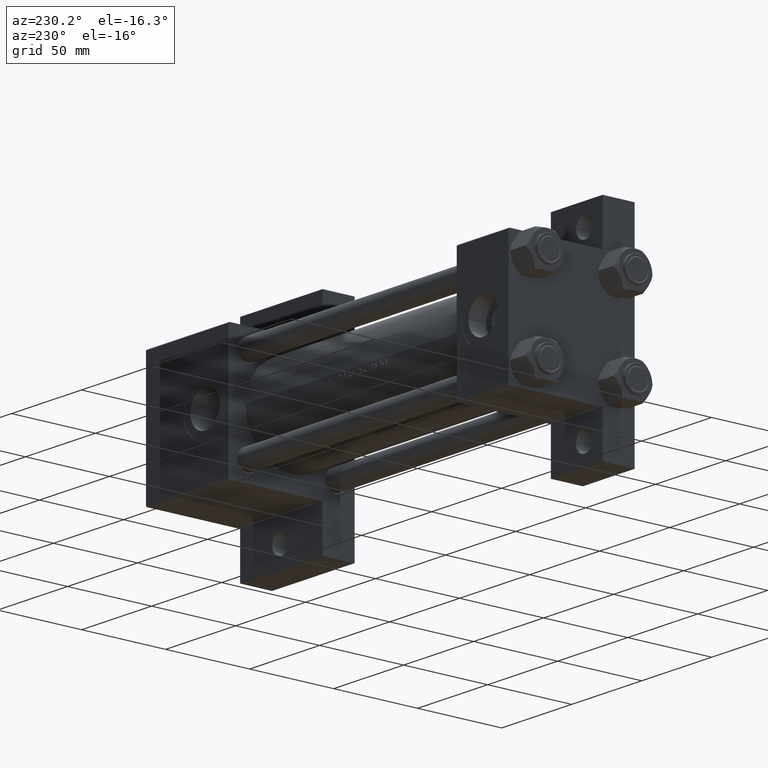
[diagram: clean part render]
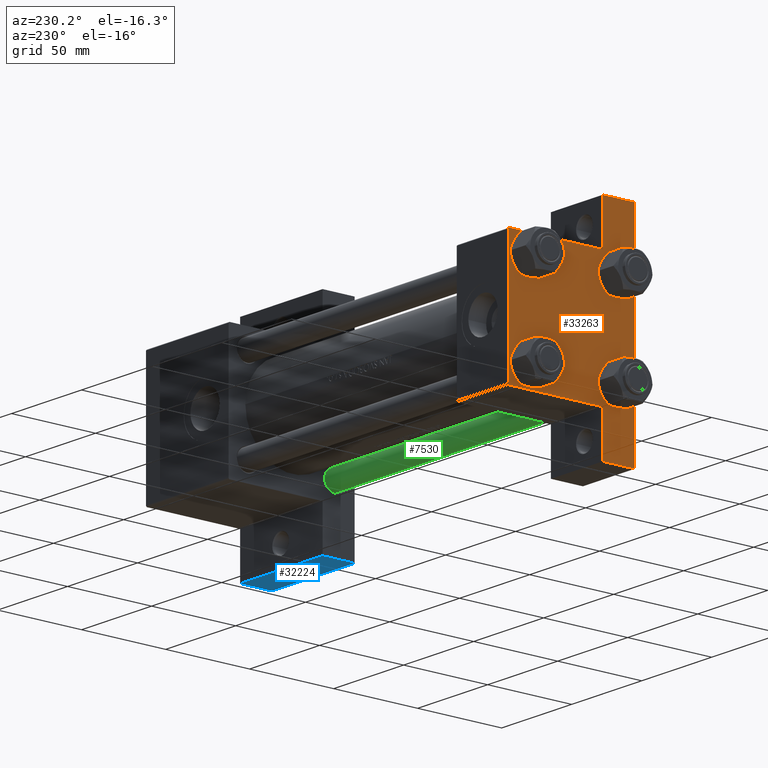
[diagram: same view with three faces highlighted in distinct colors, each labeled with its STEP entity id]
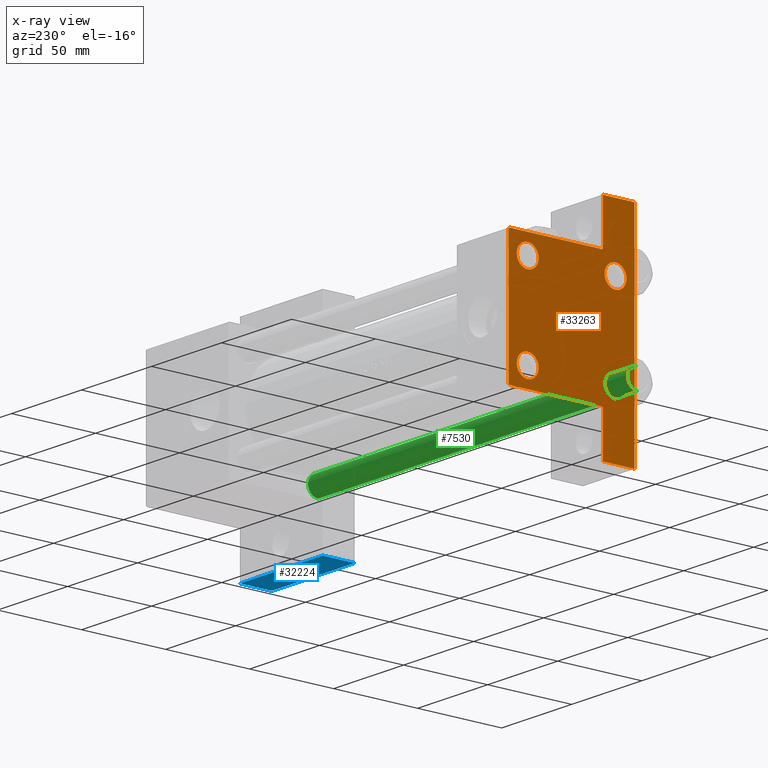
[diagram: x-ray of the same camera — body ghosted, the three highlighted faces saturated]
A machine part, auxiliary view with three faces highlighted in distinct colors.
The next image is the same camera in x-ray (body ghosted, the three faces saturated) — at least one of them is partly hidden behind the body in this view.
Their STEP definitions:

[orange] entity #33263 — the highlighted planar face has unit normal (-1, 0, -0).
#267 = ORIENTED_EDGE ( 'NONE', *, *, #18928, .F. ) ;
#543 = CIRCLE ( 'NONE', #15141, 6.500000000000015987 ) ;
#575 = LINE ( 'NONE', #19571, #15184 ) ;
#863 = CARTESIAN_POINT ( 'NONE',  ( 0.000000000000000000, 26.14999999999999858, -19.64999999999998792 ) ) ;
#1081 = FACE_BOUND ( 'NONE', #35413, .T. ) ;
#1141 = VERTEX_POINT ( 'NONE', #7278 ) ;
#1498 = ORIENTED_EDGE ( 'NONE', *, *, #35056, .F. ) ;
#2056 = CARTESIAN_POINT ( 'NONE',  ( 0.000000000000000000, -37.50000000000000711, 36.99999999999999289 ) ) ;
#2385 = CARTESIAN_POINT ( 'NONE',  ( 3.977209754999747208E-16, -63.50000000000000000, -18.50000000000000355 ) ) ;
#2860 = ORIENTED_EDGE ( 'NONE', *, *, #32518, .T. ) ;
#2975 = CARTESIAN_POINT ( 'NONE',  ( 3.977209754999747208E-16, -63.49999999999998579, 26.72167621838007889 ) ) ;
#3034 = ORIENTED_EDGE ( 'NONE', *, *, #34999, .T. ) ;
#3201 = CIRCLE ( 'NONE', #35443, 6.500000000000015987 ) ;
#3362 = DIRECTION ( 'NONE',  ( 1.000000000000000000, -0.000000000000000000, 0.000000000000000000 ) ) ;
#3405 = CARTESIAN_POINT ( 'NONE',  ( 0.000000000000000000, -26.14999999999999147, 19.64999999999999147 ) ) ;
#4825 = DIRECTION ( 'NONE',  ( 1.000000000000000000, -0.000000000000000000, 0.000000000000000000 ) ) ;
#4871 = CARTESIAN_POINT ( 'NONE',  ( 0.000000000000000000, 26.14999999999999858, 26.15000000000000213 ) ) ;
#5094 = ORIENTED_EDGE ( 'NONE', *, *, #34186, .F. ) ;
#5160 = CARTESIAN_POINT ( 'NONE',  ( 1.595073532467135441E-14, 63.50000000000000000, -18.50000000000000355 ) ) ;
#5191 = EDGE_CURVE ( 'NONE', #29949, #22309, #46921, .T. ) ;
#5479 = VERTEX_POINT ( 'NONE', #9362 ) ;
#6231 = CARTESIAN_POINT ( 'NONE',  ( 0.000000000000000000, 37.49999999999999289, -18.49999999999999645 ) ) ;
#6956 = CARTESIAN_POINT ( 'NONE',  ( 0.000000000000000000, -26.14999999999999147, 32.65000000000003411 ) ) ;
#7278 = CARTESIAN_POINT ( 'NONE',  ( 0.000000000000000000, 26.14999999999999858, 32.65000000000002700 ) ) ;
#7499 = AXIS2_PLACEMENT_3D ( 'NONE', #10136, #28662, #43801 ) ;
#7953 = CARTESIAN_POINT ( 'NONE',  ( 0.000000000000000000, -26.14999999999999147, -19.64999999999999503 ) ) ;
#8628 = CARTESIAN_POINT ( 'NONE',  ( 0.000000000000000000, 26.14999999999999858, 19.64999999999998437 ) ) ;
#8711 = CARTESIAN_POINT ( 'NONE',  ( 0.000000000000000000, -26.14999999999999147, 26.15000000000000924 ) ) ;
#8722 = VERTEX_POINT ( 'NONE', #8628 ) ;
#9024 = CIRCLE ( 'NONE', #7499, 6.500000000000023093 ) ;
#9117 = DIRECTION ( 'NONE',  ( -2.877097866686192789E-16, -1.000000000000000000, 0.000000000000000000 ) ) ;
#9362 = CARTESIAN_POINT ( 'NONE',  ( 0.000000000000000000, -37.00000000000000711, 37.49999999999999289 ) ) ;
#9550 = DIRECTION ( 'NONE',  ( 0.000000000000000000, -1.000000000000000000, -9.251858538542971581E-17 ) ) ;
#9795 = LINE ( 'NONE', #35306, #31997 ) ;
#9923 = EDGE_CURVE ( 'NONE', #46934, #21485, #9024, .T. ) ;
#10103 = VECTOR ( 'NONE', #40237, 1000.000000000000000 ) ;
#10136 = CARTESIAN_POINT ( 'NONE',  ( 0.000000000000000000, -26.14999999999999147, 26.15000000000000924 ) ) ;
#10486 = ORIENTED_EDGE ( 'NONE', *, *, #40167, .T. ) ;
#10702 = CARTESIAN_POINT ( 'NONE',  ( 0.000000000000000000, -37.50000000000000711, 37.49999999999999289 ) ) ;
#10781 = VERTEX_POINT ( 'NONE', #7953 ) ;
#11264 = CIRCLE ( 'NONE', #44275, 6.500000000000015987 ) ;
#12168 = CARTESIAN_POINT ( 'NONE',  ( 0.000000000000000000, 0.000000000000000000, 0.000000000000000000 ) ) ;
#12292 = LINE ( 'NONE', #10702, #30584 ) ;
#12922 = DIRECTION ( 'NONE',  ( 1.000000000000000000, -0.000000000000000000, 0.000000000000000000 ) ) ;
#13048 = DIRECTION ( 'NONE',  ( 1.000000000000000000, -0.000000000000000000, 0.000000000000000000 ) ) ;
#13804 = CARTESIAN_POINT ( 'NONE',  ( 3.977209754999747208E-16, -63.50000000000000000, -37.49999999999999289 ) ) ;
#13997 = DIRECTION ( 'NONE',  ( 0.000000000000000000, 0.7071067811865474617, -0.7071067811865474617 ) ) ;
#14241 = VECTOR ( 'NONE', #13997, 1000.000000000000114 ) ;
#14411 = VERTEX_POINT ( 'NONE', #43838 ) ;
#14492 = EDGE_LOOP ( 'NONE', ( #26031, #2860, #5094, #25057, #42832, #19297, #3034, #28669, #267, #1498 ) ) ;
#15069 = DIRECTION ( 'NONE',  ( 0.000000000000000000, -1.000000000000000000, -9.251858538542972814E-17 ) ) ;
#15108 = AXIS2_PLACEMENT_3D ( 'NONE', #31869, #28265, #18858 ) ;
#15141 = AXIS2_PLACEMENT_3D ( 'NONE', #15356, #12922, #20137 ) ;
#15184 = VECTOR ( 'NONE', #40975, 1000.000000000000000 ) ;
#15356 = CARTESIAN_POINT ( 'NONE',  ( 0.000000000000000000, -26.14999999999999147, -26.15000000000000924 ) ) ;
#15446 = EDGE_LOOP ( 'NONE', ( #44483, #10486 ) ) ;
#15655 = DIRECTION ( 'NONE',  ( 0.000000000000000000, 0.000000000000000000, 1.000000000000000000 ) ) ;
#15704 = DIRECTION ( 'NONE',  ( 0.000000000000000000, 0.000000000000000000, 1.000000000000000000 ) ) ;
#15769 = FACE_BOUND ( 'NONE', #15446, .T. ) ;
#16013 = FACE_BOUND ( 'NONE', #30224, .T. ) ;
#16160 = EDGE_LOOP ( 'NONE', ( #45707, #26276 ) ) ;
#16650 = CARTESIAN_POINT ( 'NONE',  ( -0.000000000000000000, -37.25000000000000000, 37.25000000000000000 ) ) ;
#16653 = VECTOR ( 'NONE', #34887, 1000.000000000000000 ) ;
#17970 = CARTESIAN_POINT ( 'NONE',  ( 0.000000000000000000, 37.49999999999999289, -37.50000000000000000 ) ) ;
#18042 = DIRECTION ( 'NONE',  ( 0.000000000000000000, 0.000000000000000000, 1.000000000000000000 ) ) ;
#18166 = EDGE_CURVE ( 'NONE', #10781, #14411, #3201, .T. ) ;
#18858 = DIRECTION ( 'NONE',  ( 0.000000000000000000, 0.000000000000000000, 1.000000000000000000 ) ) ;
#18928 = EDGE_CURVE ( 'NONE', #21369, #18997, #43837, .T. ) ;
#18997 = VERTEX_POINT ( 'NONE', #13804 ) ;
#19297 = ORIENTED_EDGE ( 'NONE', *, *, #45551, .F. ) ;
#19571 = CARTESIAN_POINT ( 'NONE',  ( 0.000000000000000000, 37.49999999999999289, 37.50000000000000000 ) ) ;
#19591 = VERTEX_POINT ( 'NONE', #5160 ) ;
#20137 = DIRECTION ( 'NONE',  ( 0.000000000000000000, 0.000000000000000000, 1.000000000000000000 ) ) ;
#20204 = CARTESIAN_POINT ( 'NONE',  ( 0.000000000000000000, 37.49999999999999289, 37.00000000000000000 ) ) ;
#21369 = VERTEX_POINT ( 'NONE', #2385 ) ;
#21381 = VERTEX_POINT ( 'NONE', #31723 ) ;
#21414 = DIRECTION ( 'NONE',  ( 4.278042683914906889E-17, -1.000000000000000000, 0.000000000000000000 ) ) ;
#21485 = VERTEX_POINT ( 'NONE', #6956 ) ;
#22309 = VERTEX_POINT ( 'NONE', #20204 ) ;
#22446 = VERTEX_POINT ( 'NONE', #25721 ) ;
#23648 = CARTESIAN_POINT ( 'NONE',  ( 0.000000000000000000, 26.14999999999999858, -32.65000000000001990 ) ) ;
#23887 = LINE ( 'NONE', #16650, #42696 ) ;
#25057 = ORIENTED_EDGE ( 'NONE', *, *, #5191, .T. ) ;
#25391 = DIRECTION ( 'NONE',  ( 0.000000000000000000, 9.251858538542971581E-17, -1.000000000000000000 ) ) ;
#25721 = CARTESIAN_POINT ( 'NONE',  ( -7.145701223179004046E-16, -37.50000000000000711, -18.50000000000000355 ) ) ;
#25969 = AXIS2_PLACEMENT_3D ( 'NONE', #46758, #4825, #15655 ) ;
#26031 = ORIENTED_EDGE ( 'NONE', *, *, #42503, .F. ) ;
#26276 = ORIENTED_EDGE ( 'NONE', *, *, #39719, .T. ) ;
#26846 = DIRECTION ( 'NONE',  ( -1.000000000000000000, 0.000000000000000000, -0.000000000000000000 ) ) ;
#27410 = LINE ( 'NONE', #31240, #44587 ) ;
#27438 = LINE ( 'NONE', #37784, #16653 ) ;
#28038 = VERTEX_POINT ( 'NONE', #23648 ) ;
#28151 = VECTOR ( 'NONE', #15069, 1000.000000000000000 ) ;
#28265 = DIRECTION ( 'NONE',  ( 1.000000000000000000, -0.000000000000000000, 0.000000000000000000 ) ) ;
#28662 = DIRECTION ( 'NONE',  ( 1.000000000000000000, -0.000000000000000000, 0.000000000000000000 ) ) ;
#28669 = ORIENTED_EDGE ( 'NONE', *, *, #34298, .T. ) ;
#28815 = ORIENTED_EDGE ( 'NONE', *, *, #34556, .T. ) ;
#29373 = CARTESIAN_POINT ( 'NONE',  ( 0.000000000000000000, 37.24999999999999289, 37.24999999999999289 ) ) ;
#29602 = VERTEX_POINT ( 'NONE', #2056 ) ;
#29949 = VERTEX_POINT ( 'NONE', #40519 ) ;
#30224 = EDGE_LOOP ( 'NONE', ( #44648, #39279 ) ) ;
#30437 = PLANE ( 'NONE',  #33477 ) ;
#30584 = VECTOR ( 'NONE', #25391, 1000.000000000000000 ) ;
#30676 = FACE_OUTER_BOUND ( 'NONE', #14492, .T. ) ;
#30843 = DIRECTION ( 'NONE',  ( 0.000000000000000000, 0.000000000000000000, 1.000000000000000000 ) ) ;
#31240 = CARTESIAN_POINT ( 'NONE',  ( 1.595073532467135757E-14, 63.50000000000001421, -18.50000000000000355 ) ) ;
#31317 = DIRECTION ( 'NONE',  ( -0.000000000000000000, 0.7071067811865474617, 0.7071067811865474617 ) ) ;
#31723 = CARTESIAN_POINT ( 'NONE',  ( 1.595073532467135441E-14, 63.50000000000000000, -37.50000000000002132 ) ) ;
#31869 = CARTESIAN_POINT ( 'NONE',  ( 0.000000000000000000, 26.14999999999999858, -26.15000000000000213 ) ) ;
#31997 = VECTOR ( 'NONE', #9550, 1000.000000000000000 ) ;
#32033 = CIRCLE ( 'NONE', #46599, 6.500000000000023093 ) ;
#32230 = CARTESIAN_POINT ( 'NONE',  ( 0.000000000000000000, 26.14999999999999858, -26.15000000000000213 ) ) ;
#32464 = DIRECTION ( 'NONE',  ( 1.000000000000000000, -0.000000000000000000, 0.000000000000000000 ) ) ;
#32518 = EDGE_CURVE ( 'NONE', #29602, #5479, #23887, .T. ) ;
#33119 = LINE ( 'NONE', #17970, #28151 ) ;
#33183 = CARTESIAN_POINT ( 'NONE',  ( 0.000000000000000000, -26.14999999999999147, -26.15000000000000924 ) ) ;
#33263 = ADVANCED_FACE ( 'NONE', ( #16013, #37655, #1081, #15769, #30676 ), #30437, .T. ) ;
#33477 = AXIS2_PLACEMENT_3D ( 'NONE', #12168, #26846, #34286 ) ;
#33808 = EDGE_CURVE ( 'NONE', #28038, #34410, #11264, .T. ) ;
#34186 = EDGE_CURVE ( 'NONE', #29949, #5479, #9795, .T. ) ;
#34286 = DIRECTION ( 'NONE',  ( -0.000000000000000000, 0.000000000000000000, 1.000000000000000000 ) ) ;
#34298 = EDGE_CURVE ( 'NONE', #21381, #18997, #33119, .T. ) ;
#34410 = VERTEX_POINT ( 'NONE', #863 ) ;
#34556 = EDGE_CURVE ( 'NONE', #34410, #28038, #36605, .T. ) ;
#34887 = DIRECTION ( 'NONE',  ( 0.000000000000000000, -1.734723475976806848E-16, -1.000000000000000000 ) ) ;
#34999 = EDGE_CURVE ( 'NONE', #19591, #21381, #27438, .T. ) ;
#35056 = EDGE_CURVE ( 'NONE', #22446, #21369, #35365, .T. ) ;
#35306 = CARTESIAN_POINT ( 'NONE',  ( 0.000000000000000000, 37.49999999999999289, 37.50000000000000000 ) ) ;
#35365 = LINE ( 'NONE', #43278, #40477 ) ;
#35413 = EDGE_LOOP ( 'NONE', ( #28815, #36176 ) ) ;
#35443 = AXIS2_PLACEMENT_3D ( 'NONE', #33183, #3362, #18042 ) ;
#35895 = EDGE_CURVE ( 'NONE', #22309, #38577, #575, .T. ) ;
#36176 = ORIENTED_EDGE ( 'NONE', *, *, #33808, .T. ) ;
#36605 = CIRCLE ( 'NONE', #15108, 6.500000000000015987 ) ;
#37415 = CIRCLE ( 'NONE', #25969, 6.500000000000023093 ) ;
#37494 = CIRCLE ( 'NONE', #42126, 6.500000000000023093 ) ;
#37655 = FACE_BOUND ( 'NONE', #16160, .T. ) ;
#37784 = CARTESIAN_POINT ( 'NONE',  ( 1.595073532467135441E-14, 63.50000000000001421, 26.72167621838005047 ) ) ;
#38577 = VERTEX_POINT ( 'NONE', #6231 ) ;
#38859 = EDGE_CURVE ( 'NONE', #1141, #8722, #32033, .T. ) ;
#39279 = ORIENTED_EDGE ( 'NONE', *, *, #9923, .T. ) ;
#39719 = EDGE_CURVE ( 'NONE', #14411, #10781, #543, .T. ) ;
#40167 = EDGE_CURVE ( 'NONE', #8722, #1141, #37415, .T. ) ;
#40237 = DIRECTION ( 'NONE',  ( 0.000000000000000000, -1.734723475976806848E-16, -1.000000000000000000 ) ) ;
#40477 = VECTOR ( 'NONE', #21414, 1000.000000000000000 ) ;
#40519 = CARTESIAN_POINT ( 'NONE',  ( 0.000000000000000000, 36.99999999999999289, 37.50000000000000000 ) ) ;
#40975 = DIRECTION ( 'NONE',  ( 0.000000000000000000, 0.000000000000000000, -1.000000000000000000 ) ) ;
#41665 = DIRECTION ( 'NONE',  ( 1.000000000000000000, -0.000000000000000000, 0.000000000000000000 ) ) ;
#42126 = AXIS2_PLACEMENT_3D ( 'NONE', #8711, #13048, #30843 ) ;
#42503 = EDGE_CURVE ( 'NONE', #29602, #22446, #12292, .T. ) ;
#42696 = VECTOR ( 'NONE', #31317, 1000.000000000000114 ) ;
#42832 = ORIENTED_EDGE ( 'NONE', *, *, #35895, .T. ) ;
#43278 = CARTESIAN_POINT ( 'NONE',  ( 3.977209754999744250E-16, -63.49999999999998579, -18.50000000000000355 ) ) ;
#43801 = DIRECTION ( 'NONE',  ( 0.000000000000000000, 0.000000000000000000, 1.000000000000000000 ) ) ;
#43837 = LINE ( 'NONE', #2975, #10103 ) ;
#43838 = CARTESIAN_POINT ( 'NONE',  ( 0.000000000000000000, -26.14999999999999147, -32.65000000000002700 ) ) ;
#44275 = AXIS2_PLACEMENT_3D ( 'NONE', #32230, #32464, #46879 ) ;
#44483 = ORIENTED_EDGE ( 'NONE', *, *, #38859, .T. ) ;
#44587 = VECTOR ( 'NONE', #9117, 1000.000000000000000 ) ;
#44648 = ORIENTED_EDGE ( 'NONE', *, *, #46861, .T. ) ;
#45551 = EDGE_CURVE ( 'NONE', #19591, #38577, #27410, .T. ) ;
#45707 = ORIENTED_EDGE ( 'NONE', *, *, #18166, .T. ) ;
#46599 = AXIS2_PLACEMENT_3D ( 'NONE', #4871, #41665, #15704 ) ;
#46758 = CARTESIAN_POINT ( 'NONE',  ( 0.000000000000000000, 26.14999999999999858, 26.15000000000000213 ) ) ;
#46861 = EDGE_CURVE ( 'NONE', #21485, #46934, #37494, .T. ) ;
#46879 = DIRECTION ( 'NONE',  ( 0.000000000000000000, 0.000000000000000000, 1.000000000000000000 ) ) ;
#46921 = LINE ( 'NONE', #29373, #14241 ) ;
#46934 = VERTEX_POINT ( 'NONE', #3405 ) ;

[blue] entity #32224 — the highlighted planar face has unit normal (0, 0, -1).
#596 = DIRECTION ( 'NONE',  ( 0.000000000000000000, 0.000000000000000000, -1.000000000000000000 ) ) ;
#955 = CARTESIAN_POINT ( 'NONE',  ( 200.0000000000000284, 63.49999999999998579, -18.50000000000000000 ) ) ;
#6172 = CARTESIAN_POINT ( 'NONE',  ( 259.0000000000000000, 63.49999999999995737, -37.50000000000000000 ) ) ;
#6753 = ORIENTED_EDGE ( 'NONE', *, *, #19893, .F. ) ;
#7002 = CARTESIAN_POINT ( 'NONE',  ( 200.0000000000000284, 63.49999999999998579, -37.50000000000000000 ) ) ;
#7769 = DIRECTION ( 'NONE',  ( 1.000000000000000000, -4.704334850106597767E-16, 0.000000000000000000 ) ) ;
#8353 = DIRECTION ( 'NONE',  ( -1.000000000000000000, 4.704334850106597767E-16, 0.000000000000000000 ) ) ;
#8981 = DIRECTION ( 'NONE',  ( 1.000000000000000000, -4.704334850106597767E-16, 0.000000000000000000 ) ) ;
#9223 = CARTESIAN_POINT ( 'NONE',  ( 200.0000000000000284, 63.49999999999998579, -18.50000000000000000 ) ) ;
#11966 = PLANE ( 'NONE',  #34234 ) ;
#12602 = LINE ( 'NONE', #9223, #42363 ) ;
#12899 = ORIENTED_EDGE ( 'NONE', *, *, #30688, .T. ) ;
#13631 = EDGE_LOOP ( 'NONE', ( #6753, #17881, #31022, #12899 ) ) ;
#13696 = VERTEX_POINT ( 'NONE', #20718 ) ;
#14732 = VERTEX_POINT ( 'NONE', #7002 ) ;
#14790 = VECTOR ( 'NONE', #7769, 1000.000000000000000 ) ;
#15119 = VERTEX_POINT ( 'NONE', #6172 ) ;
#17881 = ORIENTED_EDGE ( 'NONE', *, *, #38480, .F. ) ;
#18865 = EDGE_CURVE ( 'NONE', #45412, #13696, #12602, .T. ) ;
#19893 = EDGE_CURVE ( 'NONE', #14732, #15119, #40722, .T. ) ;
#20718 = CARTESIAN_POINT ( 'NONE',  ( 259.0000000000000000, 63.49999999999995737, -18.50000000000000000 ) ) ;
#22258 = LINE ( 'NONE', #30168, #22668 ) ;
#22668 = VECTOR ( 'NONE', #596, 1000.000000000000000 ) ;
#23165 = CARTESIAN_POINT ( 'NONE',  ( 200.0000000000000284, 63.49999999999998579, -37.50000000000000000 ) ) ;
#23516 = FACE_OUTER_BOUND ( 'NONE', #13631, .T. ) ;
#30168 = CARTESIAN_POINT ( 'NONE',  ( 259.0000000000000000, 63.49999999999995737, -18.50000000000000000 ) ) ;
#30241 = CARTESIAN_POINT ( 'NONE',  ( 200.0000000000000284, 63.49999999999998579, -18.50000000000000000 ) ) ;
#30588 = VECTOR ( 'NONE', #44719, 1000.000000000000000 ) ;
#30688 = EDGE_CURVE ( 'NONE', #13696, #15119, #22258, .T. ) ;
#31022 = ORIENTED_EDGE ( 'NONE', *, *, #18865, .T. ) ;
#32224 = ADVANCED_FACE ( 'NONE', ( #23516 ), #11966, .T. ) ;
#34234 = AXIS2_PLACEMENT_3D ( 'NONE', #30241, #44891, #8353 ) ;
#37277 = LINE ( 'NONE', #955, #30588 ) ;
#38480 = EDGE_CURVE ( 'NONE', #45412, #14732, #37277, .T. ) ;
#40722 = LINE ( 'NONE', #23165, #14790 ) ;
#42363 = VECTOR ( 'NONE', #8981, 1000.000000000000000 ) ;
#44719 = DIRECTION ( 'NONE',  ( 0.000000000000000000, 0.000000000000000000, -1.000000000000000000 ) ) ;
#44891 = DIRECTION ( 'NONE',  ( 4.704334850106597767E-16, 1.000000000000000000, 0.000000000000000000 ) ) ;
#45412 = VERTEX_POINT ( 'NONE', #46961 ) ;
#46961 = CARTESIAN_POINT ( 'NONE',  ( 200.0000000000000284, 63.49999999999998579, -18.50000000000000000 ) ) ;

[green] entity #7530 — the highlighted cylindrical surface (edge-blend (fillet) strip) has radius 6 mm, axis along (-1, 0, 0).
#86 = ORIENTED_EDGE ( 'NONE', *, *, #34126, .T. ) ;
#1328 = VECTOR ( 'NONE', #45516, 1000.000000000000000 ) ;
#2099 = CARTESIAN_POINT ( 'NONE',  ( 0.000000000000000000, 0.000000000000000000, 228.5000000000001137 ) ) ;
#3013 = DIRECTION ( 'NONE',  ( -0.000000000000000000, -0.000000000000000000, -1.000000000000000000 ) ) ;
#3636 = CARTESIAN_POINT ( 'NONE',  ( 0.000000000000000000, 0.000000000000000000, 0.5000000000001392220 ) ) ;
#4181 = CARTESIAN_POINT ( 'NONE',  ( 6.000000000000000888, 7.347880794884119736E-16, 229.0000000000000000 ) ) ;
#5577 = VERTEX_POINT ( 'NONE', #25715 ) ;
#6031 = FACE_OUTER_BOUND ( 'NONE', #27201, .T. ) ;
#6137 = CARTESIAN_POINT ( 'NONE',  ( -6.000000000000000888, 0.000000000000000000, 229.0000000000000000 ) ) ;
#7416 = ORIENTED_EDGE ( 'NONE', *, *, #34501, .T. ) ;
#7530 = ADVANCED_FACE ( 'NONE', ( #6031 ), #24326, .T. ) ;
#7716 = DIRECTION ( 'NONE',  ( 1.000000000000000000, 0.000000000000000000, 0.000000000000000000 ) ) ;
#7792 = LINE ( 'NONE', #4181, #1328 ) ;
#10066 = EDGE_CURVE ( 'NONE', #27690, #37261, #14449, .T. ) ;
#10256 = CARTESIAN_POINT ( 'NONE',  ( 6.000000000000000888, 7.347880794884119736E-16, 228.5000000000001137 ) ) ;
#13738 = DIRECTION ( 'NONE',  ( -0.000000000000000000, -0.000000000000000000, -1.000000000000000000 ) ) ;
#14449 = CIRCLE ( 'NONE', #34379, 6.000000000000000888 ) ;
#14540 = ORIENTED_EDGE ( 'NONE', *, *, #36773, .F. ) ;
#17333 = CARTESIAN_POINT ( 'NONE',  ( 6.000000000000000888, 7.347880794884119736E-16, 0.5000000000001392220 ) ) ;
#20639 = DIRECTION ( 'NONE',  ( 1.000000000000000000, 0.000000000000000000, 0.000000000000000000 ) ) ;
#21780 = ORIENTED_EDGE ( 'NONE', *, *, #10066, .T. ) ;
#24326 = CYLINDRICAL_SURFACE ( 'NONE', #29703, 6.000000000000000888 ) ;
#25715 = CARTESIAN_POINT ( 'NONE',  ( -6.000000000000000888, 0.000000000000000000, 228.5000000000001137 ) ) ;
#26122 = CARTESIAN_POINT ( 'NONE',  ( -6.000000000000000888, 0.000000000000000000, 0.5000000000001392220 ) ) ;
#27201 = EDGE_LOOP ( 'NONE', ( #14540, #86, #7416, #21780 ) ) ;
#27690 = VERTEX_POINT ( 'NONE', #26122 ) ;
#29703 = AXIS2_PLACEMENT_3D ( 'NONE', #38976, #13738, #39457 ) ;
#33103 = VERTEX_POINT ( 'NONE', #10256 ) ;
#33451 = DIRECTION ( 'NONE',  ( -0.000000000000000000, -0.000000000000000000, 1.000000000000000000 ) ) ;
#34126 = EDGE_CURVE ( 'NONE', #33103, #5577, #35058, .T. ) ;
#34379 = AXIS2_PLACEMENT_3D ( 'NONE', #3636, #33451, #7716 ) ;
#34501 = EDGE_CURVE ( 'NONE', #5577, #27690, #43157, .T. ) ;
#35058 = CIRCLE ( 'NONE', #42728, 6.000000000000000888 ) ;
#36773 = EDGE_CURVE ( 'NONE', #33103, #37261, #7792, .T. ) ;
#37261 = VERTEX_POINT ( 'NONE', #17333 ) ;
#38890 = VECTOR ( 'NONE', #3013, 1000.000000000000000 ) ;
#38976 = CARTESIAN_POINT ( 'NONE',  ( 0.000000000000000000, 0.000000000000000000, 229.0000000000000000 ) ) ;
#39457 = DIRECTION ( 'NONE',  ( -1.000000000000000000, 0.000000000000000000, 0.000000000000000000 ) ) ;
#42728 = AXIS2_PLACEMENT_3D ( 'NONE', #2099, #47047, #20639 ) ;
#43157 = LINE ( 'NONE', #6137, #38890 ) ;
#45516 = DIRECTION ( 'NONE',  ( -0.000000000000000000, -0.000000000000000000, -1.000000000000000000 ) ) ;
#47047 = DIRECTION ( 'NONE',  ( 0.000000000000000000, 0.000000000000000000, -1.000000000000000000 ) ) ;